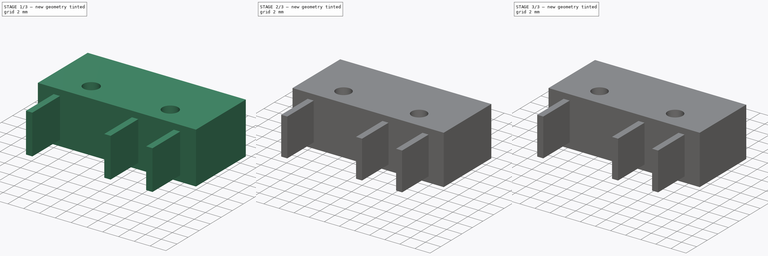
[diagram: build sequence overview — one tinted view per stage of 3, left to right]
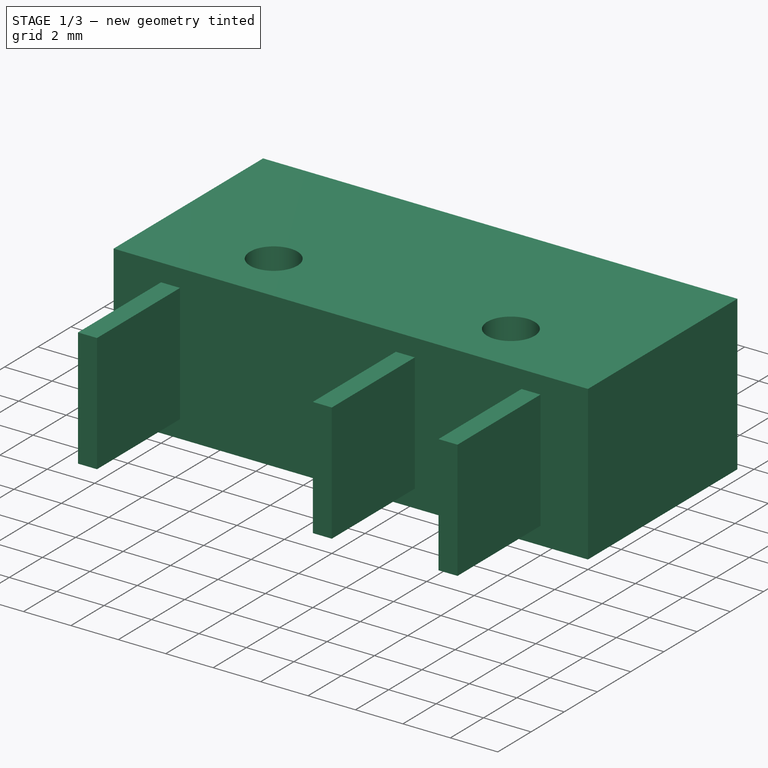
[diagram: stage 1 of 3 — iso view after this stage's code; geometry added in this stage tinted green]
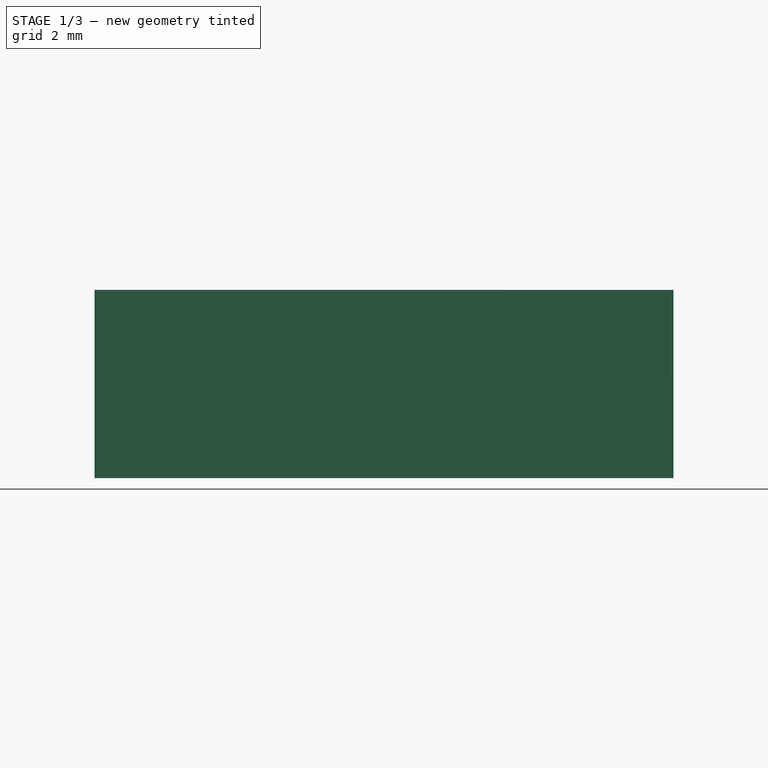
[diagram: stage 1 of 3 — front view after this stage's code; geometry added in this stage tinted green]
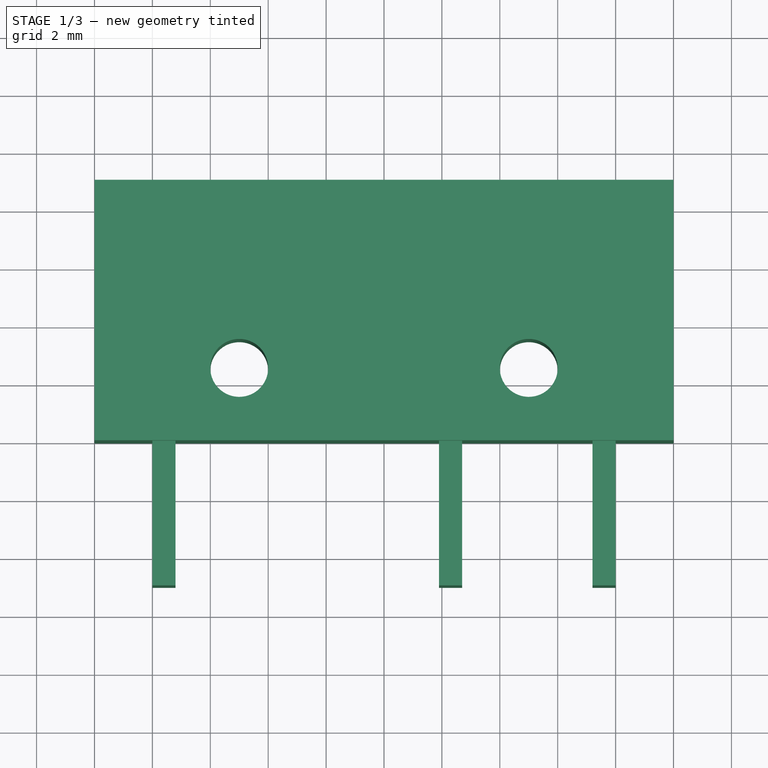
[diagram: stage 1 of 3 — top view after this stage's code; geometry added in this stage tinted green]
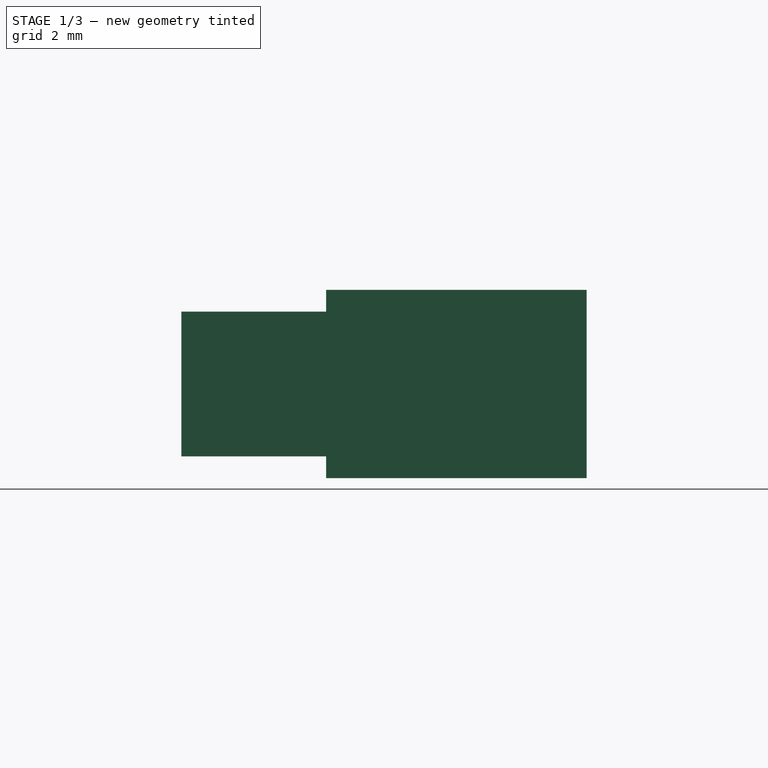
[diagram: stage 1 of 3 — right view after this stage's code; geometry added in this stage tinted green]
FCSTD DOCUMENT  (FreeCAD 0.18R16131 (Git))
Label: microswitch
License: All rights reserved
LicenseURL: http://en.wikipedia.org/wiki/All_rights_reserved
objects: Sketcher::SketchObject×3, PartDesign::Pad×2, PartDesign::Fillet×2, PartDesign::Line×1, PartDesign::Revolution×1, PartDesign::Body×1
note: 13 computed .brp shape members not serialized (recipe doc carries the construction recipe); baked Part::Feature solids carry a one-line shape summary decoded from their .brp

FEATURE [Sketcher::SketchObject] Sketch
  MapMode = 5
  Support = -> [XY_Plane]
  sketch-geometry (6):
    g0: LineSegment StartX=-10 StartY=0 StartZ=0 EndX=10 EndY=0 EndZ=0
    g1: LineSegment StartX=10 StartY=0 StartZ=0 EndX=10 EndY=9 EndZ=0
    g2: LineSegment StartX=10 StartY=9 StartZ=0 EndX=-10 EndY=9 EndZ=0
    g3: LineSegment StartX=-10 StartY=9 StartZ=0 EndX=-10 EndY=0 EndZ=0
    g4: Circle CenterX=-5 CenterY=2.5 CenterZ=0 NormalX=0 NormalY=0 NormalZ=1 AngleXU=0 Radius=1
    g5: Circle CenterX=5 CenterY=2.5 CenterZ=0 NormalX=0 NormalY=0 NormalZ=1 AngleXU=0 Radius=1
  constraints (16):
    c: Coincident(g0,g1)
    c: Coincident(g1,g2)
    c: Coincident(g2,g3)
    c: Coincident(g3,g0)
    c: Horizontal(g2)
    c: Vertical(g1)
    c: Vertical(g3)
    c: Horizontal(g0,g-1)
    c: Distance(g0) = 20
    c: Symmetric(g0,g0,g-2)
    c: Distance(g3) = 9
    c: Radius(g4) = 1
    c: Equal(g4,g5)
    c: Symmetric(g4,g5,g-2)
    c: DistanceY(g0,g4) = 2.5
    c: DistanceX(g4,g5) = 10
FEATURE [PartDesign::Pad] Pad
  Length = 6.5
  Length2 = 100
  Midplane = true
  Profile = -> Sketch
  Type = 0
FEATURE [Sketcher::SketchObject] Sketch001
  ExternalGeometry = -> [Pad]
  MapMode = 5
  Support = -> [XY_Plane]
  sketch-geometry (12):
    g0: LineSegment StartX=-8 StartY=0 StartZ=0 EndX=-7.2 EndY=0 EndZ=0
    g1: LineSegment StartX=-7.2 StartY=0 StartZ=0 EndX=-7.2 EndY=-5 EndZ=0
    g2: LineSegment StartX=-7.2 StartY=-5 StartZ=0 EndX=-8 EndY=-5 EndZ=0
    g3: LineSegment StartX=-8 StartY=-5 StartZ=0 EndX=-8 EndY=0 EndZ=0
    g4: LineSegment StartX=7.2 StartY=0 StartZ=0 EndX=8 EndY=0 EndZ=0
    g5: LineSegment StartX=8 StartY=0 StartZ=0 EndX=8 EndY=-5 EndZ=0
    g6: LineSegment StartX=8 StartY=-5 StartZ=0 EndX=7.2 EndY=-5 EndZ=0
    g7: LineSegment StartX=7.2 StartY=-5 StartZ=0 EndX=7.2 EndY=0 EndZ=0
    g8: LineSegment StartX=1.9 StartY=0 StartZ=0 EndX=2.7 EndY=0 EndZ=0
    g9: LineSegment StartX=2.7 StartY=0 StartZ=0 EndX=2.7 EndY=-5 EndZ=0
    g10: LineSegment StartX=2.7 StartY=-5 StartZ=0 EndX=1.9 EndY=-5 EndZ=0
    g11: LineSegment StartX=1.9 StartY=-5 StartZ=0 EndX=1.9 EndY=0 EndZ=0
  constraints (35):
    c: Coincident(g0,g1)
    c: Coincident(g1,g2)
    c: Coincident(g2,g3)
    c: Coincident(g3,g0)
    c: Horizontal(g0)
    c: Horizontal(g2)
    c: Vertical(g1)
    c: Vertical(g3)
    c: Coincident(g4,g5)
    c: Coincident(g5,g6)
    c: Coincident(g6,g7)
    c: Coincident(g7,g4)
    c: Horizontal(g4)
    c: Horizontal(g6)
    c: Vertical(g5)
    c: Vertical(g7)
    c: Equal(g2,g6)
    c: DistanceX(g2,g1) = 0.8
    c: DistanceX(g-3,g0) = 2
    c: Horizontal(g0,g-3)
    c: Horizontal(g-3,g4)
    c: Symmetric(g1,g6,g-2)
    c: DistanceY(g5,g4) = 5
    c: Coincident(g8,g9)
    c: Coincident(g9,g10)
    c: Coincident(g10,g11)
    c: Coincident(g11,g8)
    c: Horizontal(g8)
    c: Horizontal(g10)
    c: Vertical(g9)
    c: Vertical(g11)
    c: PointOnObject(g8,g-1)
    c: Horizontal(g9,g6)
    c: Equal(g10,g6)
    c: DistanceX(g9,g6) = 4.5
FEATURE [PartDesign::Pad] Pad001
  BaseFeature = -> Pad
  Length = 5
  Length2 = 100
  Midplane = true
  Profile = -> Sketch001
  Type = 0
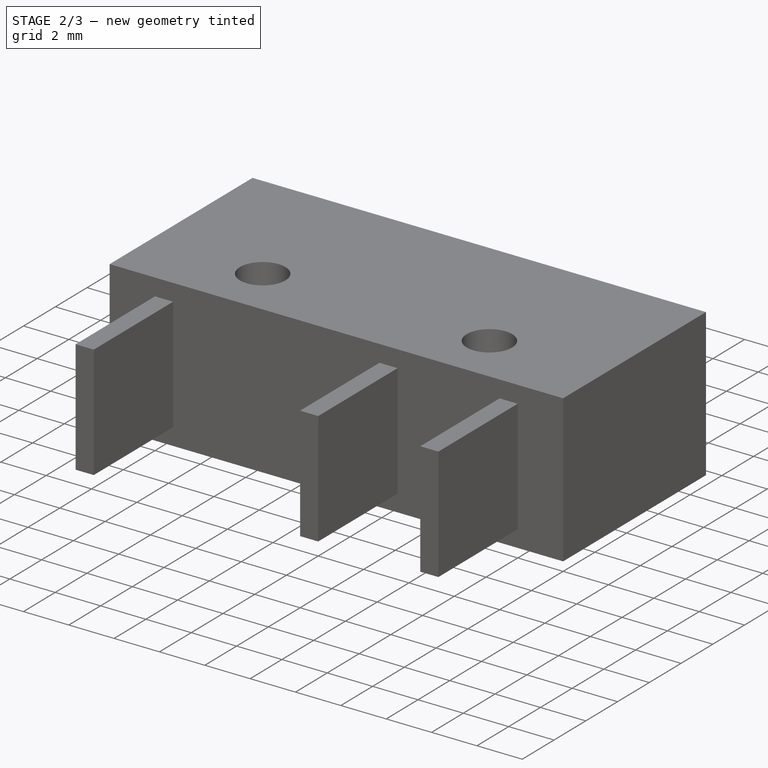
[diagram: stage 2 of 3 — iso view after this stage's code; geometry added in this stage tinted green]
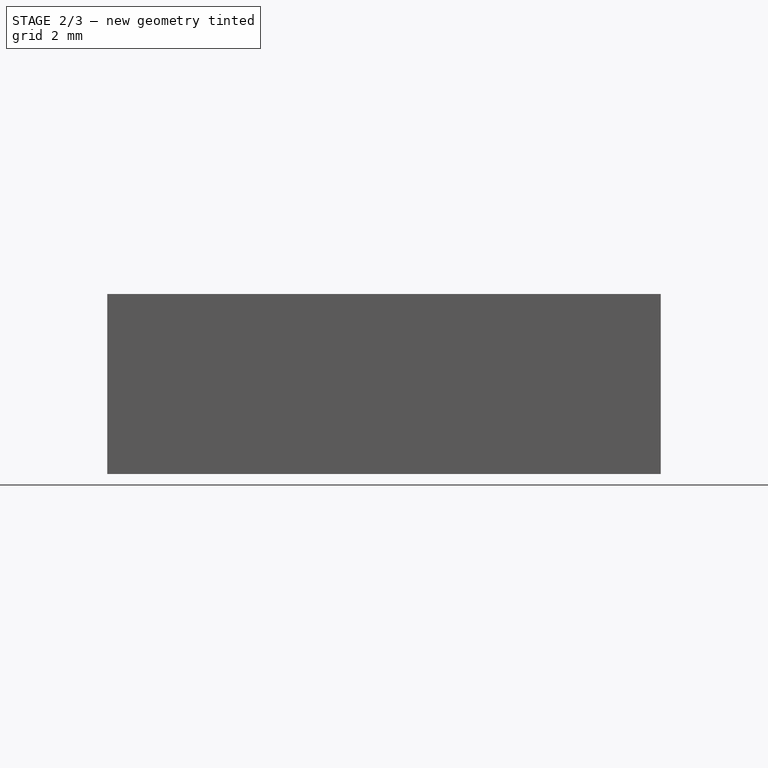
[diagram: stage 2 of 3 — front view after this stage's code; geometry added in this stage tinted green]
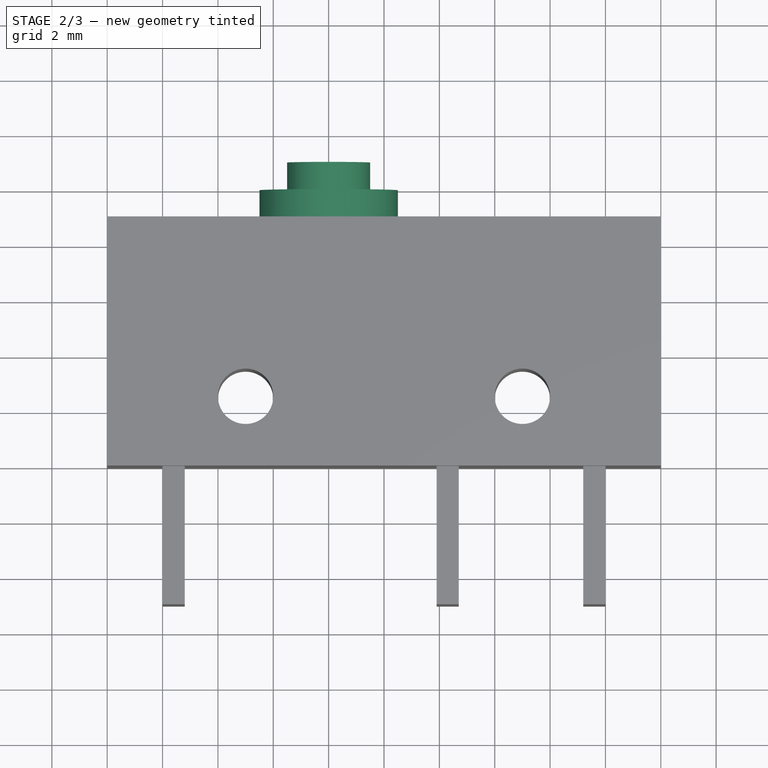
[diagram: stage 2 of 3 — top view after this stage's code; geometry added in this stage tinted green]
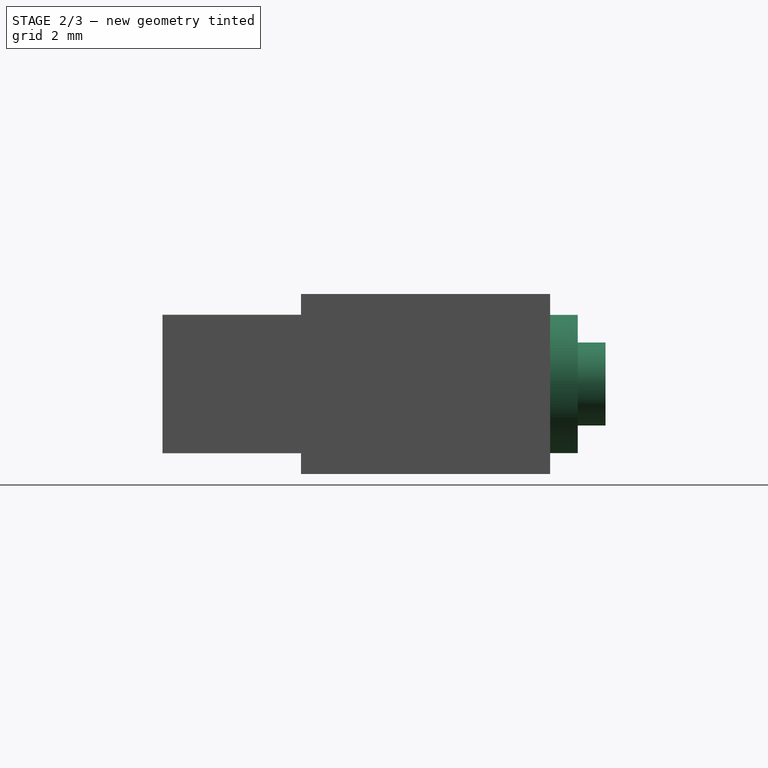
[diagram: stage 2 of 3 — right view after this stage's code; geometry added in this stage tinted green]
FEATURE [PartDesign::Line] DatumLine
  AttacherType = Attacher::AttachEngineLine
  AttachmentOffset = pos=(-2,0,0) rot=(0,0,1;0rad)
  MapMode = 17
  Placement = pos=(-2,0,0) rot=(1,0,0;1.5708rad)
  Support = -> [XY_Plane]
FEATURE [Sketcher::SketchObject] Sketch002
  ExternalGeometry = -> [DatumLine]
  MapMode = 5
  Support = -> [XY_Plane]
  sketch-geometry (6):
    g0: LineSegment StartX=-2 StartY=9 StartZ=0 EndX=-4.5 EndY=9 EndZ=0
    g1: LineSegment StartX=-4.5 StartY=9 StartZ=0 EndX=-4.5 EndY=10 EndZ=0
    g2: LineSegment StartX=-4.5 StartY=10 StartZ=0 EndX=-3.5 EndY=10 EndZ=0
    g3: LineSegment StartX=-3.5 StartY=10 StartZ=0 EndX=-3.5 EndY=11 EndZ=0
    g4: LineSegment StartX=-3.5 StartY=11 StartZ=0 EndX=-2 EndY=11 EndZ=0
    g5: LineSegment StartX=-2 StartY=11 StartZ=0 EndX=-2 EndY=9 EndZ=0
  constraints (18):
    c: Coincident(g0,g1)
    c: Coincident(g1,g2)
    c: Coincident(g2,g3)
    c: Coincident(g3,g4)
    c: Coincident(g4,g5)
    c: Horizontal(g4)
    c: Vertical(g3)
    c: Horizontal(g2)
    c: Vertical(g1)
    c: Horizontal(g0)
    c: Vertical(g5)
    c: Coincident(g0,g5)
    c: PointOnObject(g4,g-3)
    c: DistanceX(g0,g0) = 2.5
    c: DistanceY(g1,g1) = 1
    c: DistanceX(g4,g4) = 1.5
    c: DistanceY(g3,g3) = 1
    c: DistanceY(g-1,g0) = 9
FEATURE [PartDesign::Revolution] Revolution
  Angle = 360
  Axis = (0,-1,2e-16)
  Base = (-2,0,0)
  BaseFeature = -> Pad001
  Profile = -> Sketch002
  ReferenceAxis = -> DatumLine
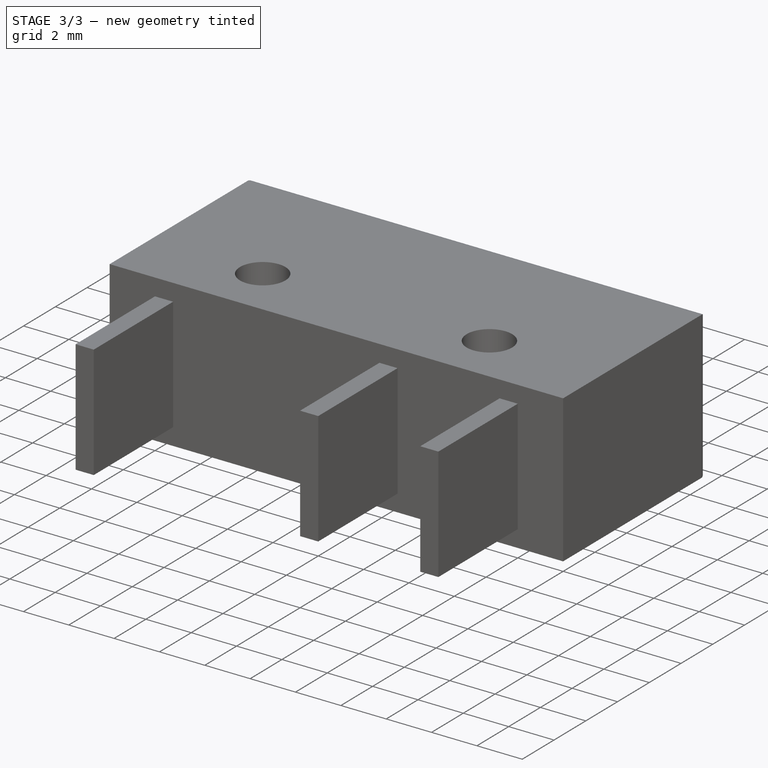
[diagram: stage 3 of 3 — iso view after this stage's code; geometry added in this stage tinted green]
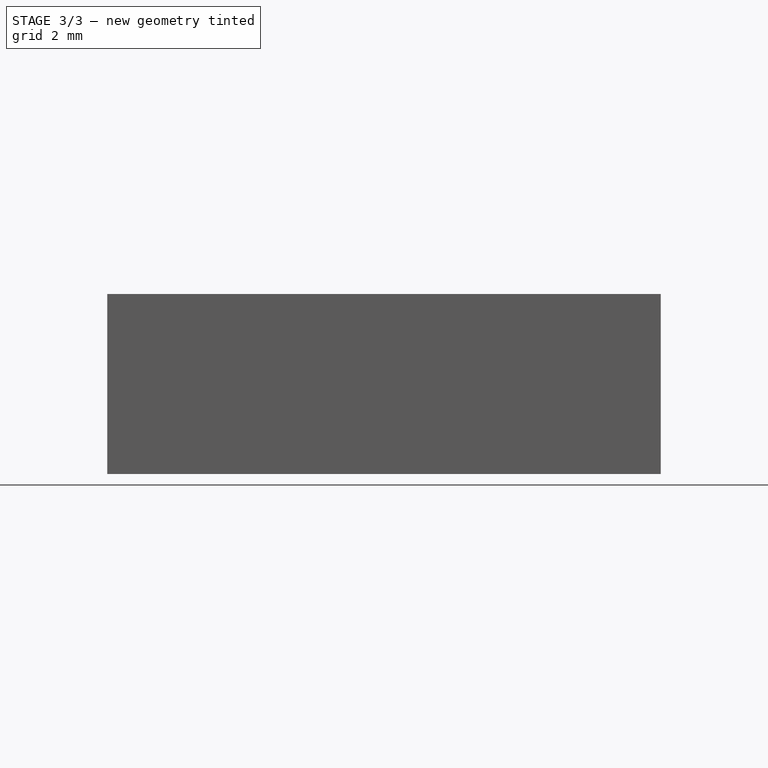
[diagram: stage 3 of 3 — front view after this stage's code; geometry added in this stage tinted green]
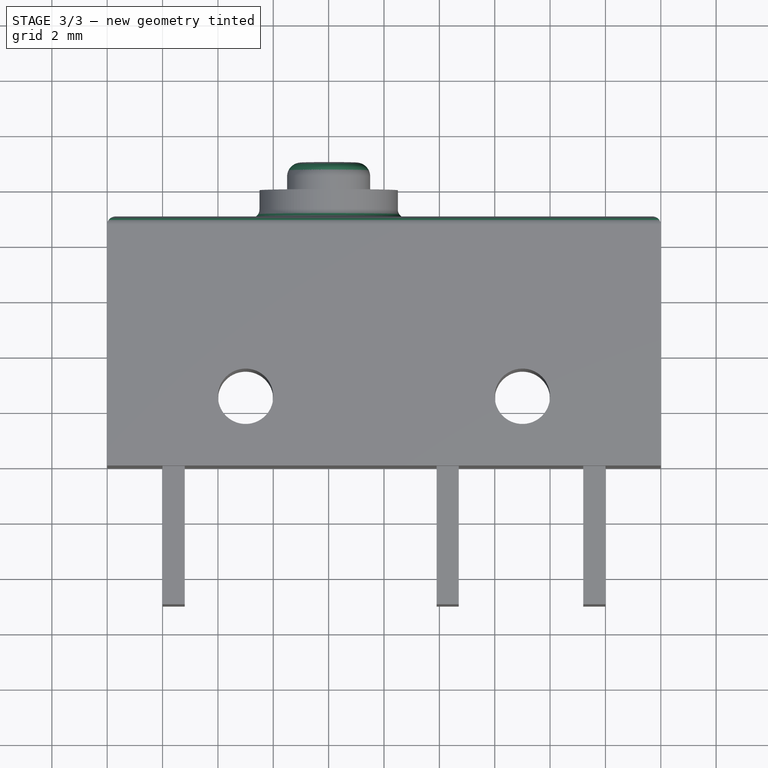
[diagram: stage 3 of 3 — top view after this stage's code; geometry added in this stage tinted green]
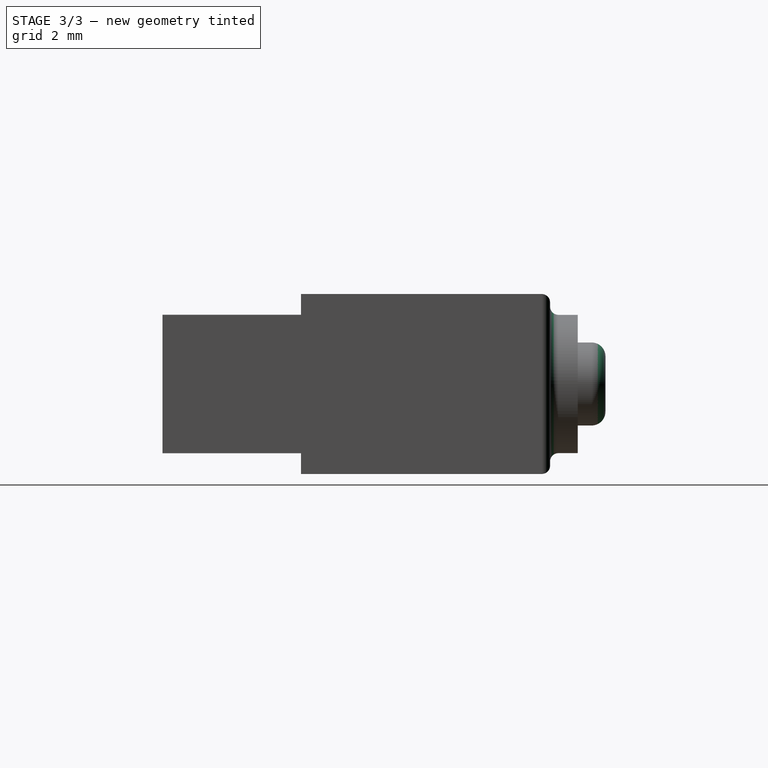
[diagram: stage 3 of 3 — right view after this stage's code; geometry added in this stage tinted green]
FEATURE [PartDesign::Fillet] Fillet
  Base = -> Revolution [Edge59]
  BaseFeature = -> Revolution
  Radius = 0.5
FEATURE [PartDesign::Fillet] Fillet001
  Base = -> Fillet [Face6]
  BaseFeature = -> Fillet
  Radius = 0.3
FEATURE [PartDesign::Body] Body
  Group = -> [Sketch,Pad,Sketch001,Pad001,DatumLine,Sketch002,Revolution,Fillet,Fillet001]
  Origin = -> Origin
  Tip = -> Fillet001
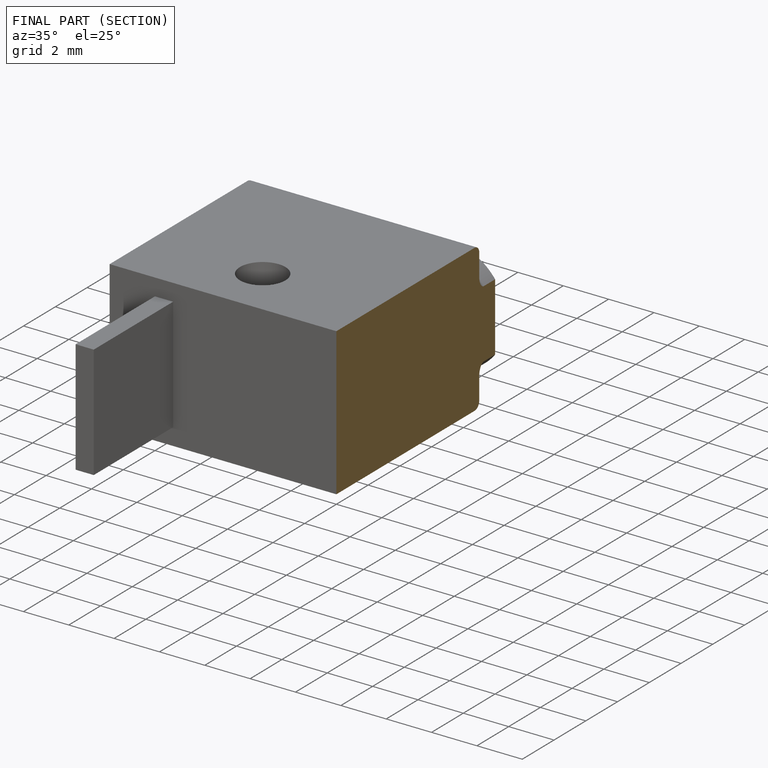
[diagram: finished part — half-section view (interior)]
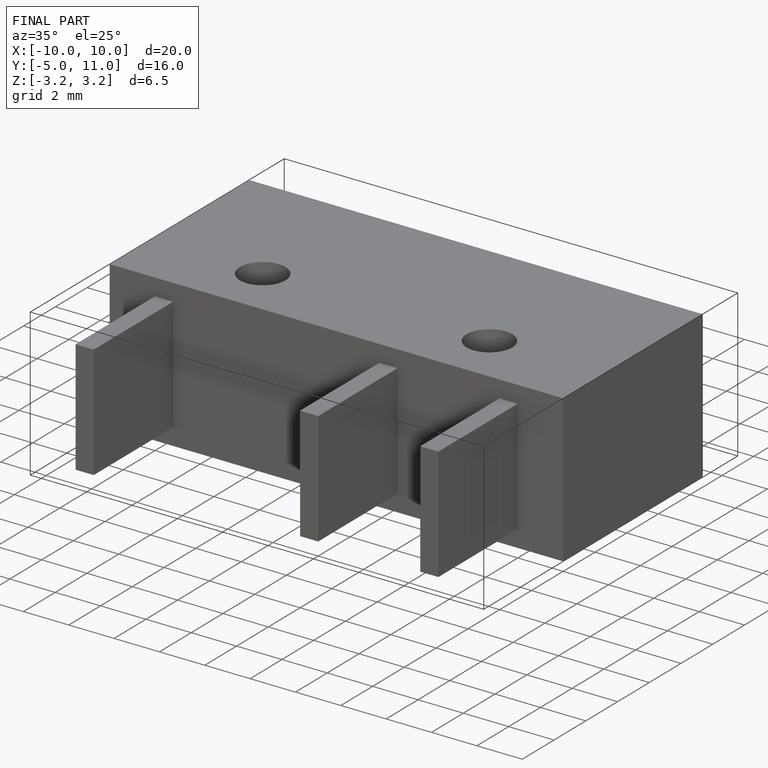
[diagram: finished part — iso view with bounding-box wireframe]
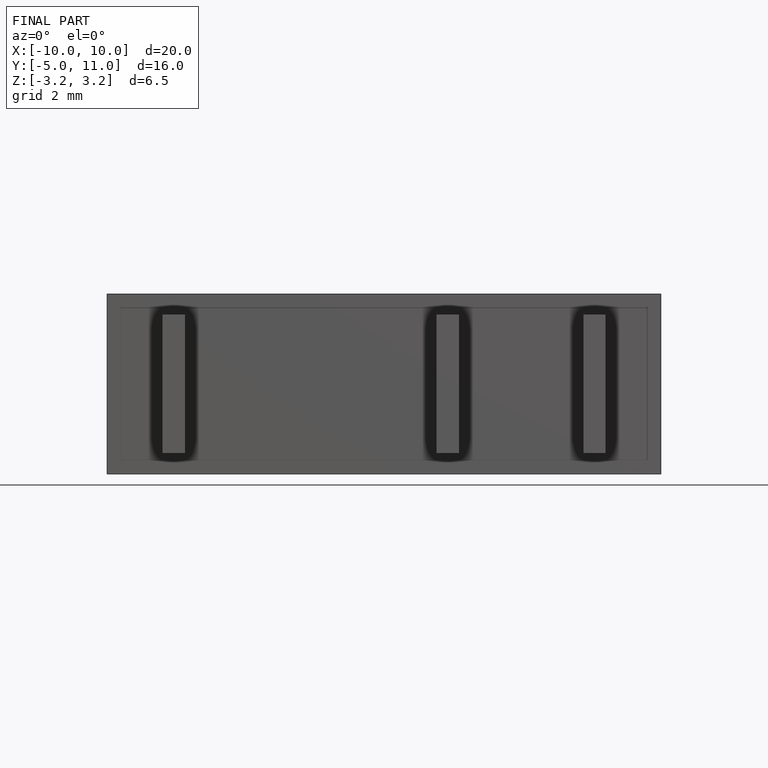
[diagram: finished part — front view with bounding-box wireframe]
